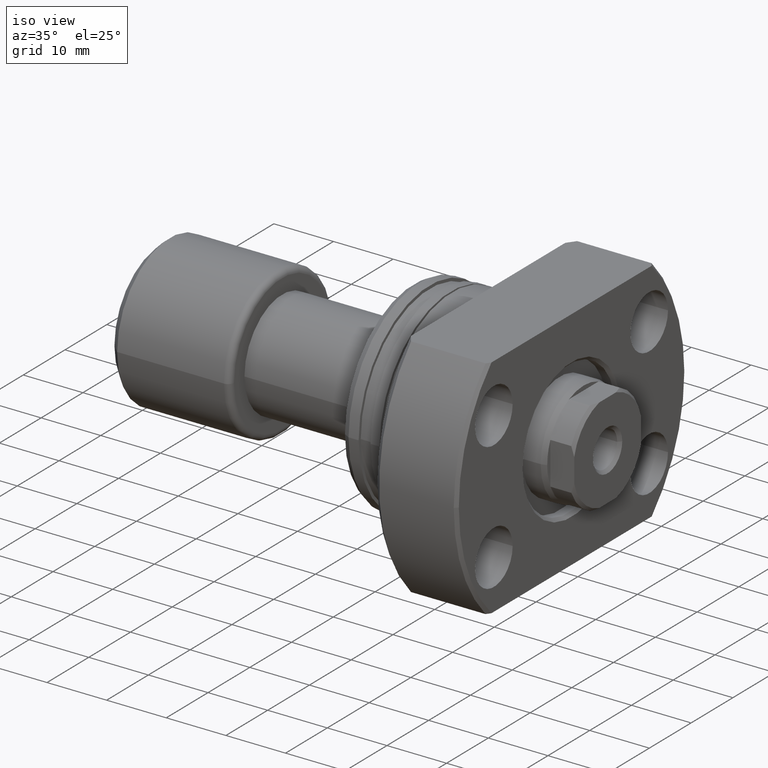
[diagram: clean part render]
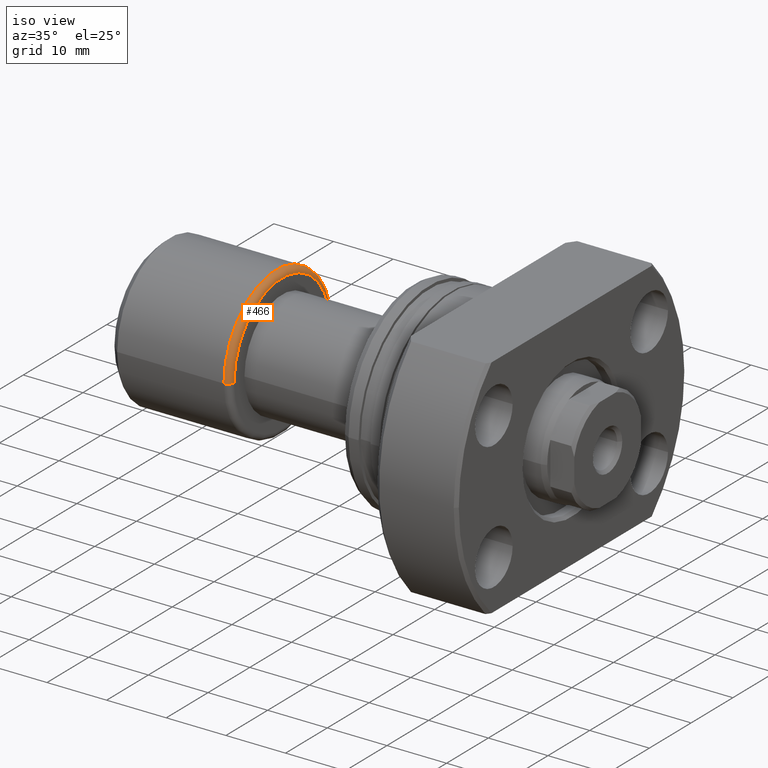
[diagram: same view with one face highlighted and labeled with its STEP entity id]
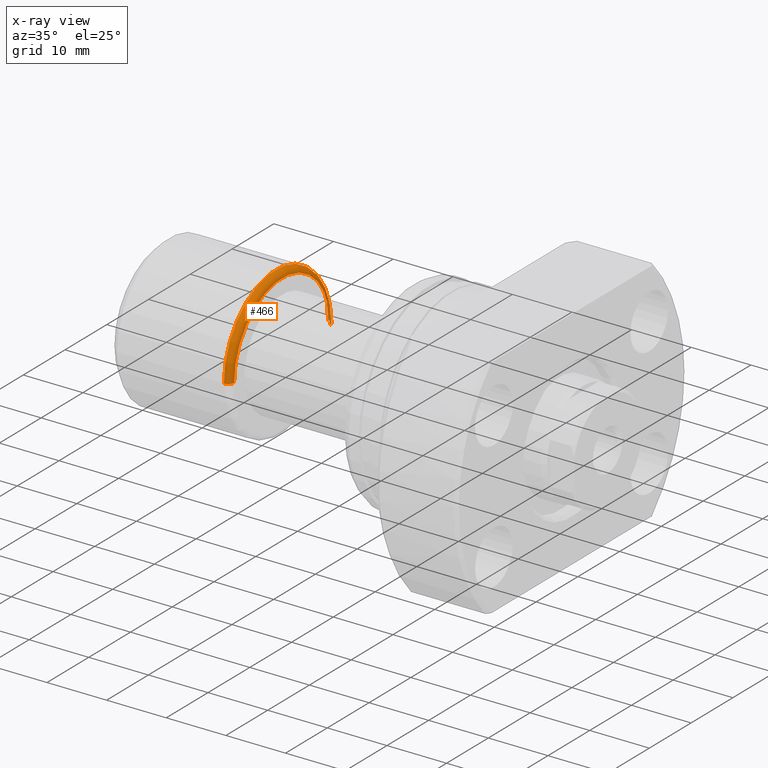
[diagram: x-ray of the same camera — body ghosted, the highlighted face saturated]
A machine part, iso view. The second image highlights one B-rep face of the part: STEP entity #466.
The next image is the same camera in x-ray: the body ghosted, the highlighted face saturated — about 4% of this face is hidden behind the body in this view.
In plain terms, the highlighted toroidal blend (fillet) surface has major radius 11.5 mm and minor (blend) radius 1 mm.
Its self-contained STEP definition (entity closure, byte-faithful):
#45 = DIRECTION ( 'NONE',  ( 0.000000000000000000, -1.000000000000000000, 0.000000000000000000 ) ) ;
#47 = ORIENTED_EDGE ( 'NONE', *, *, #2747, .F. ) ;
#239 = CIRCLE ( 'NONE', #699, 1.000000000000000888 ) ;
#371 = DIRECTION ( 'NONE',  ( -1.000000000000000000, -1.069542322069065801E-17, -0.000000000000000000 ) ) ;
#427 = DIRECTION ( 'NONE',  ( 0.000000000000000000, -1.000000000000000000, -1.224646799147353454E-16 ) ) ;
#438 = CIRCLE ( 'NONE', #447, 12.50000000000000000 ) ;
#447 = AXIS2_PLACEMENT_3D ( 'NONE', #1074, #1547, #45 ) ;
#466 = ADVANCED_FACE ( 'NONE', ( #3204 ), #2339, .T. ) ;
#605 = ORIENTED_EDGE ( 'NONE', *, *, #1959, .T. ) ;
#699 = AXIS2_PLACEMENT_3D ( 'NONE', #823, #1354, #2095 ) ;
#727 = VERTEX_POINT ( 'NONE', #2025 ) ;
#823 = CARTESIAN_POINT ( 'NONE',  ( 19.39999999999999858, -11.50000000000000000, 0.000000000000000000 ) ) ;
#867 = ORIENTED_EDGE ( 'NONE', *, *, #2056, .T. ) ;
#909 = CIRCLE ( 'NONE', #2889, 11.50000000000000000 ) ;
#984 = ORIENTED_EDGE ( 'NONE', *, *, #1951, .F. ) ;
#989 = VERTEX_POINT ( 'NONE', #1086 ) ;
#1064 = CIRCLE ( 'NONE', #1377, 1.000000000000000888 ) ;
#1074 = CARTESIAN_POINT ( 'NONE',  ( 19.40000000000000213, 2.074912104813987675E-16, 0.000000000000000000 ) ) ;
#1086 = CARTESIAN_POINT ( 'NONE',  ( 19.40000000000000213, -12.50000000000000000, 0.000000000000000000 ) ) ;
#1129 = CARTESIAN_POINT ( 'NONE',  ( 20.39999999999999858, 2.181866337020894116E-16, 0.000000000000000000 ) ) ;
#1354 = DIRECTION ( 'NONE',  ( 0.000000000000000000, 0.000000000000000000, -1.000000000000000000 ) ) ;
#1377 = AXIS2_PLACEMENT_3D ( 'NONE', #3111, #1635, #427 ) ;
#1492 = EDGE_LOOP ( 'NONE', ( #867, #605, #47, #984 ) ) ;
#1547 = DIRECTION ( 'NONE',  ( -1.000000000000000000, -1.069542322069065801E-17, -0.000000000000000000 ) ) ;
#1599 = DIRECTION ( 'NONE',  ( 0.000000000000000000, -1.000000000000000000, 0.000000000000000000 ) ) ;
#1635 = DIRECTION ( 'NONE',  ( 1.309811581274509052E-33, -1.224646799147353207E-16, 1.000000000000000000 ) ) ;
#1935 = DIRECTION ( 'NONE',  ( 1.069542322069065955E-17, -1.000000000000000000, 0.000000000000000000 ) ) ;
#1951 = EDGE_CURVE ( 'NONE', #3009, #989, #239, .T. ) ;
#1959 = EDGE_CURVE ( 'NONE', #2963, #727, #1064, .T. ) ;
#2025 = CARTESIAN_POINT ( 'NONE',  ( 19.40000000000000213, 12.50000000000000000, 1.530808498934191521E-15 ) ) ;
#2056 = EDGE_CURVE ( 'NONE', #3009, #2963, #909, .T. ) ;
#2095 = DIRECTION ( 'NONE',  ( -1.000000000000000000, 0.000000000000000000, 0.000000000000000000 ) ) ;
#2339 = TOROIDAL_SURFACE ( 'NONE', #3145, 11.50000000000000000, 1.000000000000000888 ) ;
#2659 = DIRECTION ( 'NONE',  ( -1.000000000000000000, -1.069542322069065801E-17, -0.000000000000000000 ) ) ;
#2676 = CARTESIAN_POINT ( 'NONE',  ( 19.39999999999999858, 0.000000000000000000, 0.000000000000000000 ) ) ;
#2747 = EDGE_CURVE ( 'NONE', #989, #727, #438, .T. ) ;
#2874 = CARTESIAN_POINT ( 'NONE',  ( 20.39999999999999858, 11.50000000000000000, 1.469576158976823947E-15 ) ) ;
#2889 = AXIS2_PLACEMENT_3D ( 'NONE', #1129, #371, #1599 ) ;
#2954 = CARTESIAN_POINT ( 'NONE',  ( 20.39999999999999858, -11.50000000000000000, 0.000000000000000000 ) ) ;
#2963 = VERTEX_POINT ( 'NONE', #2874 ) ;
#3009 = VERTEX_POINT ( 'NONE', #2954 ) ;
#3111 = CARTESIAN_POINT ( 'NONE',  ( 19.39999999999999858, 11.50000000000000000, 1.408343819019456176E-15 ) ) ;
#3145 = AXIS2_PLACEMENT_3D ( 'NONE', #2676, #2659, #1935 ) ;
#3204 = FACE_OUTER_BOUND ( 'NONE', #1492, .T. ) ;